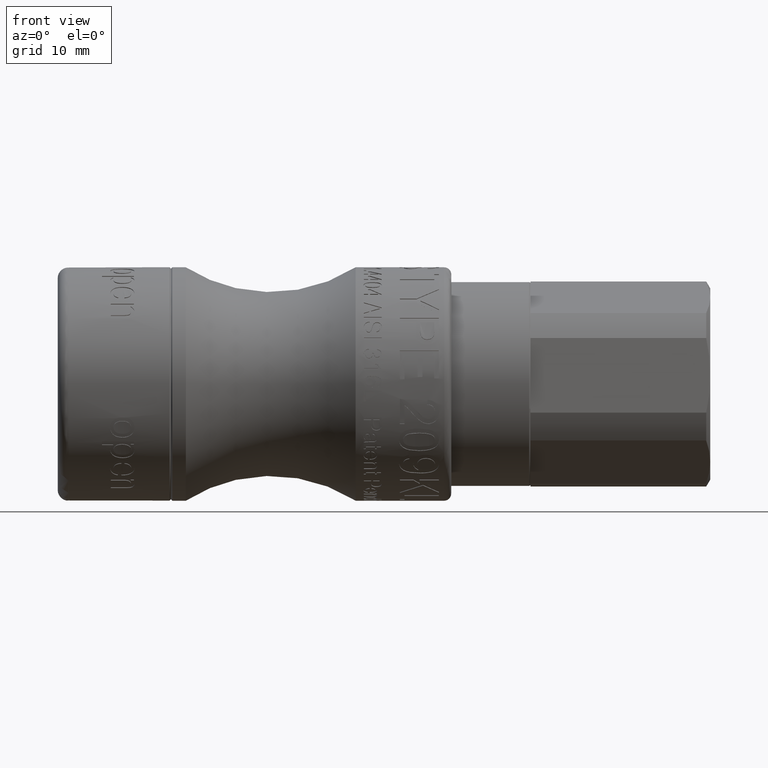
[diagram: clean part render]
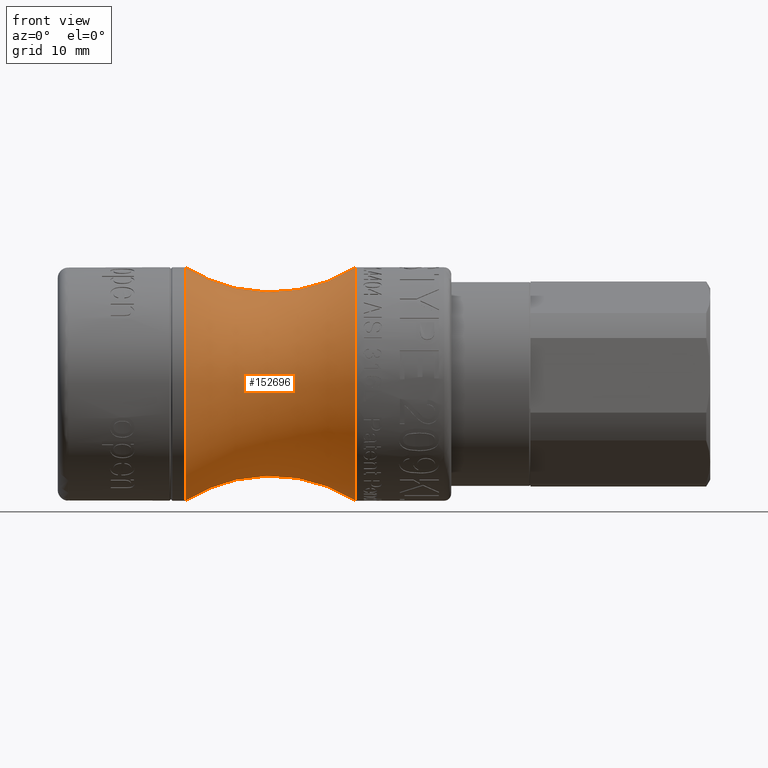
[diagram: same view with one face highlighted and labeled with its STEP entity id]
A machine part, front view. The second image highlights one B-rep face of the part: STEP entity #152696.
In plain terms, the highlighted toroidal blend (fillet) surface has major radius 35.3214 mm and minor (blend) radius 22.3214 mm.
Its self-contained STEP definition (entity closure, byte-faithful):
#151489=CARTESIAN_POINT('',(39.300000000000004,16.216006570655985,3.048135643379789));
#151490=VERTEX_POINT('',#151489);
#151491=CARTESIAN_POINT('',(39.300000000000004,0.0,0.0));
#151492=DIRECTION('',(1.0,0.0,0.0));
#151493=DIRECTION('',(0.0,0.982788277009453,0.184735493538169));
#151494=AXIS2_PLACEMENT_3D('',#151491,#151492,#151493);
#151495=CIRCLE('',#151494,16.500000000000011);
#151496=EDGE_CURVE('',#151490,#151490,#151495,.T.);
#152670=CARTESIAN_POINT('',(15.299999999999997,16.216006570655971,3.048135643379788));
#152671=VERTEX_POINT('',#152670);
#152672=CARTESIAN_POINT('',(15.299999999999997,0.0,0.0));
#152673=DIRECTION('',(1.0,0.0,0.0));
#152674=DIRECTION('',(0.0,0.982788277009453,0.184735493538169));
#152675=AXIS2_PLACEMENT_3D('',#152672,#152673,#152674);
#152676=CIRCLE('',#152675,16.499999999999996);
#152677=EDGE_CURVE('',#152671,#152671,#152676,.T.);
#152685=CARTESIAN_POINT('',(27.29999999999999,0.0,0.0));
#152686=DIRECTION('',(1.0,0.0,0.0));
#152687=DIRECTION('',(0.0,0.184735493538169,-0.982788277009453));
#152688=AXIS2_PLACEMENT_3D('',#152685,#152686,#152687);
#152689=TOROIDAL_SURFACE('',#152688,35.321428571428562,22.321428571428559);
#152690=ORIENTED_EDGE('',*,*,#151496,.F.);
#152691=EDGE_LOOP('',(#152690));
#152692=FACE_OUTER_BOUND('',#152691,.T.);
#152693=ORIENTED_EDGE('',*,*,#152677,.T.);
#152694=EDGE_LOOP('',(#152693));
#152695=FACE_BOUND('',#152694,.T.);
#152696=ADVANCED_FACE('',(#152692,#152695),#152689,.F.);